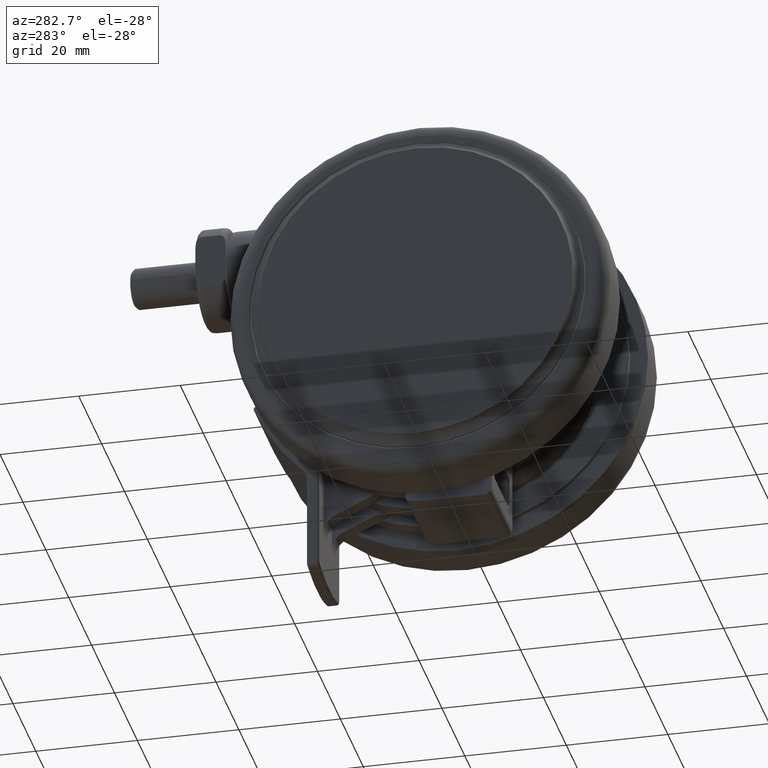
[diagram: clean part render]
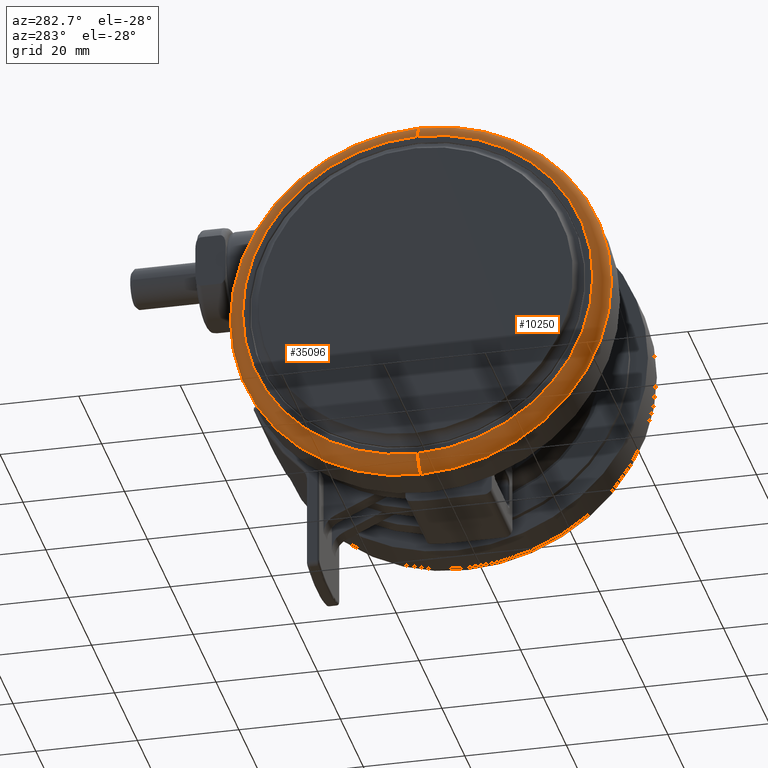
[diagram: same view with one multi-face feature highlighted, each face labeled with its STEP entity id]
A machine part, auxiliary view. The highlighted faces form ONE feature: a constant-radius fillet chain: 2 tangent blend faces with common blend radius 3 mm. The faces share edges in the B-rep.
Their STEP definitions:
[1] entity #35096 (Torus):
#14 = CARTESIAN_POINT ( 'NONE',  ( -1.176142516712274500E-013, 37.50000000000005000, -44.20000000000014500 ) ) ;
#774 = CARTESIAN_POINT ( 'NONE',  ( -1.086214451717636800E-013, 34.50000000000005000, -47.20000000000014500 ) ) ;
#1291 = CIRCLE ( 'NONE', #23086, 34.50000000000000000 ) ;
#1316 = CARTESIAN_POINT ( 'NONE',  ( -5.204170427930421300E-015, 4.857225732735059900E-014, -44.20000000000014500 ) ) ;
#2271 = DIRECTION ( 'NONE',  ( -2.997602166487920300E-015, 1.000000000000000000, 0.0000000000000000000 ) ) ;
#2334 = CARTESIAN_POINT ( 'NONE',  ( 9.398807285884447200E-014, -34.49999999999995700, -44.20000000000014500 ) ) ;
#2740 = ORIENTED_EDGE ( 'NONE', *, *, #18738, .T. ) ;
#6095 = DIRECTION ( 'NONE',  ( 2.875137486573183600E-015, -1.000000000000000000, 0.0000000000000000000 ) ) ;
#6828 = FACE_OUTER_BOUND ( 'NONE', #34144, .T. ) ;
#7019 = AXIS2_PLACEMENT_3D ( 'NONE', #2334, #28472, #6095 ) ;
#10049 = CARTESIAN_POINT ( 'NONE',  ( -5.204170427930421300E-015, 4.857225732735059900E-014, -47.20000000000014500 ) ) ;
#10724 = VERTEX_POINT ( 'NONE', #27533 ) ;
#11864 = AXIS2_PLACEMENT_3D ( 'NONE', #1316, #24640, #2271 ) ;
#13230 = CARTESIAN_POINT ( 'NONE',  ( -5.204170427930421300E-015, 4.857225732735059900E-014, -44.20000000000014500 ) ) ;
#13750 = DIRECTION ( 'NONE',  ( -2.997602166487920300E-015, 1.000000000000000000, 0.0000000000000000000 ) ) ;
#13983 = CARTESIAN_POINT ( 'NONE',  ( -1.086214451717636800E-013, 34.50000000000005000, -44.20000000000014500 ) ) ;
#16986 = DIRECTION ( 'NONE',  ( -2.997602166487919900E-015, 1.000000000000000000, 0.0000000000000000000 ) ) ;
#17765 = DIRECTION ( 'NONE',  ( -2.997602166487918300E-015, 1.000000000000000000, 0.0000000000000000000 ) ) ;
#18738 = EDGE_CURVE ( 'NONE', #31574, #10724, #42302, .T. ) ;
#19364 = AXIS2_PLACEMENT_3D ( 'NONE', #13983, #40177, #17765 ) ;
#23086 = AXIS2_PLACEMENT_3D ( 'NONE', #10049, #36181, #13750 ) ;
#24640 = DIRECTION ( 'NONE',  ( 0.0000000000000000000, 0.0000000000000000000, 1.000000000000000000 ) ) ;
#25523 = TOROIDAL_SURFACE ( 'NONE', #11864, 34.50000000000000000, 3.000000000000000000 ) ;
#27533 = CARTESIAN_POINT ( 'NONE',  ( 1.026134853185640200E-013, -37.49999999999995000, -44.20000000000014500 ) ) ;
#28472 = DIRECTION ( 'NONE',  ( -1.000000000000000000, -2.875137486573185100E-015, 0.0000000000000000000 ) ) ;
#29282 = ORIENTED_EDGE ( 'NONE', *, *, #36261, .F. ) ;
#31330 = VERTEX_POINT ( 'NONE', #774 ) ;
#31574 = VERTEX_POINT ( 'NONE', #37310 ) ;
#34144 = EDGE_LOOP ( 'NONE', ( #37504, #2740, #29282, #46955 ) ) ;
#34237 = EDGE_CURVE ( 'NONE', #31574, #31330, #1291, .T. ) ;
#35096 = ADVANCED_FACE ( 'NONE', ( #6828 ), #25523, .T. ) ;
#35174 = EDGE_CURVE ( 'NONE', #31330, #39000, #40747, .T. ) ;
#35697 = AXIS2_PLACEMENT_3D ( 'NONE', #13230, #39400, #16986 ) ;
#36181 = DIRECTION ( 'NONE',  ( -0.0000000000000000000, -0.0000000000000000000, -1.000000000000000000 ) ) ;
#36261 = EDGE_CURVE ( 'NONE', #39000, #10724, #39451, .T. ) ;
#37310 = CARTESIAN_POINT ( 'NONE',  ( 9.830077908870425300E-014, -34.49999999999995700, -47.20000000000014500 ) ) ;
#37504 = ORIENTED_EDGE ( 'NONE', *, *, #34237, .F. ) ;
#39000 = VERTEX_POINT ( 'NONE', #14 ) ;
#39400 = DIRECTION ( 'NONE',  ( 0.0000000000000000000, 0.0000000000000000000, 1.000000000000000000 ) ) ;
#39451 = CIRCLE ( 'NONE', #35697, 37.50000000000000000 ) ;
#40177 = DIRECTION ( 'NONE',  ( 1.000000000000000000, 2.997602166487920300E-015, -0.0000000000000000000 ) ) ;
#40747 = CIRCLE ( 'NONE', #19364, 3.000000000000002700 ) ;
#42302 = CIRCLE ( 'NONE', #7019, 3.000000000000002700 ) ;
#46955 = ORIENTED_EDGE ( 'NONE', *, *, #35174, .F. ) ;
[2] entity #10250 (Torus):
#14 = CARTESIAN_POINT ( 'NONE',  ( -1.176142516712274500E-013, 37.50000000000005000, -44.20000000000014500 ) ) ;
#774 = CARTESIAN_POINT ( 'NONE',  ( -1.086214451717636800E-013, 34.50000000000005000, -47.20000000000014500 ) ) ;
#2334 = CARTESIAN_POINT ( 'NONE',  ( 9.398807285884447200E-014, -34.49999999999995700, -44.20000000000014500 ) ) ;
#3540 = DIRECTION ( 'NONE',  ( 0.0000000000000000000, 0.0000000000000000000, 1.000000000000000000 ) ) ;
#6095 = DIRECTION ( 'NONE',  ( 2.875137486573183600E-015, -1.000000000000000000, 0.0000000000000000000 ) ) ;
#7019 = AXIS2_PLACEMENT_3D ( 'NONE', #2334, #28472, #6095 ) ;
#8279 = FACE_OUTER_BOUND ( 'NONE', #45572, .T. ) ;
#9864 = CIRCLE ( 'NONE', #38824, 37.50000000000000000 ) ;
#10034 = ORIENTED_EDGE ( 'NONE', *, *, #35174, .T. ) ;
#10250 = ADVANCED_FACE ( 'NONE', ( #8279 ), #18198, .T. ) ;
#10724 = VERTEX_POINT ( 'NONE', #27533 ) ;
#11957 = CIRCLE ( 'NONE', #15040, 34.50000000000000000 ) ;
#13983 = CARTESIAN_POINT ( 'NONE',  ( -1.086214451717636800E-013, 34.50000000000005000, -44.20000000000014500 ) ) ;
#14316 = ORIENTED_EDGE ( 'NONE', *, *, #24542, .F. ) ;
#14347 = EDGE_CURVE ( 'NONE', #10724, #39000, #9864, .T. ) ;
#15040 = AXIS2_PLACEMENT_3D ( 'NONE', #22349, #48573, #26101 ) ;
#17007 = AXIS2_PLACEMENT_3D ( 'NONE', #31997, #35730, #20823 ) ;
#17765 = DIRECTION ( 'NONE',  ( -2.997602166487918300E-015, 1.000000000000000000, 0.0000000000000000000 ) ) ;
#18198 = TOROIDAL_SURFACE ( 'NONE', #17007, 34.50000000000000000, 3.000000000000000000 ) ;
#18738 = EDGE_CURVE ( 'NONE', #31574, #10724, #42302, .T. ) ;
#19364 = AXIS2_PLACEMENT_3D ( 'NONE', #13983, #40177, #17765 ) ;
#20823 = DIRECTION ( 'NONE',  ( -2.997602166487920300E-015, 1.000000000000000000, 0.0000000000000000000 ) ) ;
#22349 = CARTESIAN_POINT ( 'NONE',  ( -5.204170427930421300E-015, 4.857225732735059900E-014, -47.20000000000014500 ) ) ;
#24542 = EDGE_CURVE ( 'NONE', #31330, #31574, #11957, .T. ) ;
#25894 = CARTESIAN_POINT ( 'NONE',  ( -5.204170427930421300E-015, 4.857225732735059900E-014, -44.20000000000014500 ) ) ;
#26101 = DIRECTION ( 'NONE',  ( -2.997602166487920300E-015, 1.000000000000000000, 0.0000000000000000000 ) ) ;
#27533 = CARTESIAN_POINT ( 'NONE',  ( 1.026134853185640200E-013, -37.49999999999995000, -44.20000000000014500 ) ) ;
#28472 = DIRECTION ( 'NONE',  ( -1.000000000000000000, -2.875137486573185100E-015, 0.0000000000000000000 ) ) ;
#29664 = DIRECTION ( 'NONE',  ( -2.997602166487919900E-015, 1.000000000000000000, 0.0000000000000000000 ) ) ;
#31330 = VERTEX_POINT ( 'NONE', #774 ) ;
#31574 = VERTEX_POINT ( 'NONE', #37310 ) ;
#31618 = ORIENTED_EDGE ( 'NONE', *, *, #14347, .F. ) ;
#31997 = CARTESIAN_POINT ( 'NONE',  ( -5.204170427930421300E-015, 4.857225732735059900E-014, -44.20000000000014500 ) ) ;
#33995 = ORIENTED_EDGE ( 'NONE', *, *, #18738, .F. ) ;
#35174 = EDGE_CURVE ( 'NONE', #31330, #39000, #40747, .T. ) ;
#35730 = DIRECTION ( 'NONE',  ( 0.0000000000000000000, 0.0000000000000000000, 1.000000000000000000 ) ) ;
#37310 = CARTESIAN_POINT ( 'NONE',  ( 9.830077908870425300E-014, -34.49999999999995700, -47.20000000000014500 ) ) ;
#38824 = AXIS2_PLACEMENT_3D ( 'NONE', #25894, #3540, #29664 ) ;
#39000 = VERTEX_POINT ( 'NONE', #14 ) ;
#40177 = DIRECTION ( 'NONE',  ( 1.000000000000000000, 2.997602166487920300E-015, -0.0000000000000000000 ) ) ;
#40747 = CIRCLE ( 'NONE', #19364, 3.000000000000002700 ) ;
#42302 = CIRCLE ( 'NONE', #7019, 3.000000000000002700 ) ;
#45572 = EDGE_LOOP ( 'NONE', ( #33995, #14316, #10034, #31618 ) ) ;
#48573 = DIRECTION ( 'NONE',  ( -0.0000000000000000000, -0.0000000000000000000, -1.000000000000000000 ) ) ;